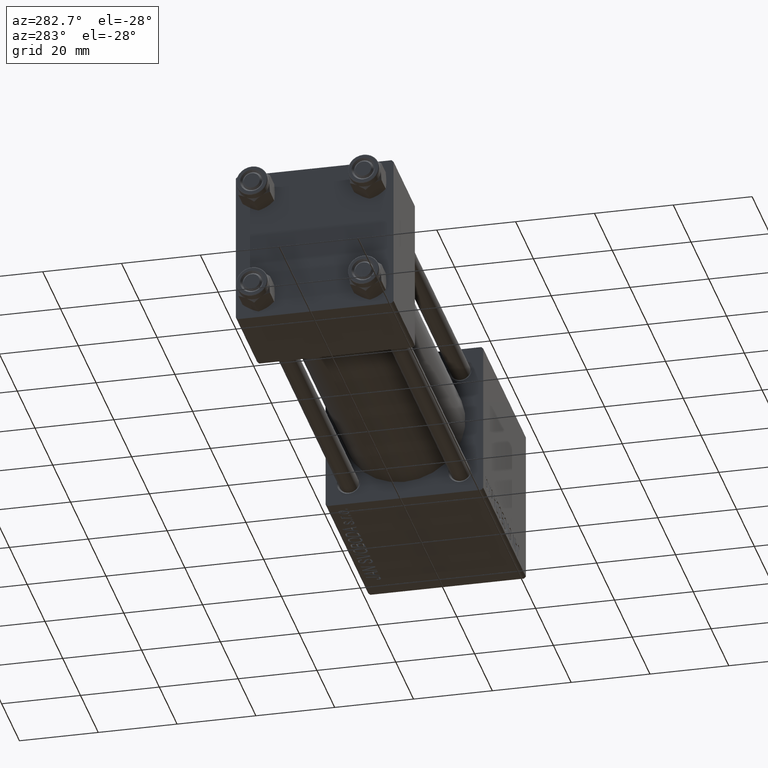
[diagram: clean part render]
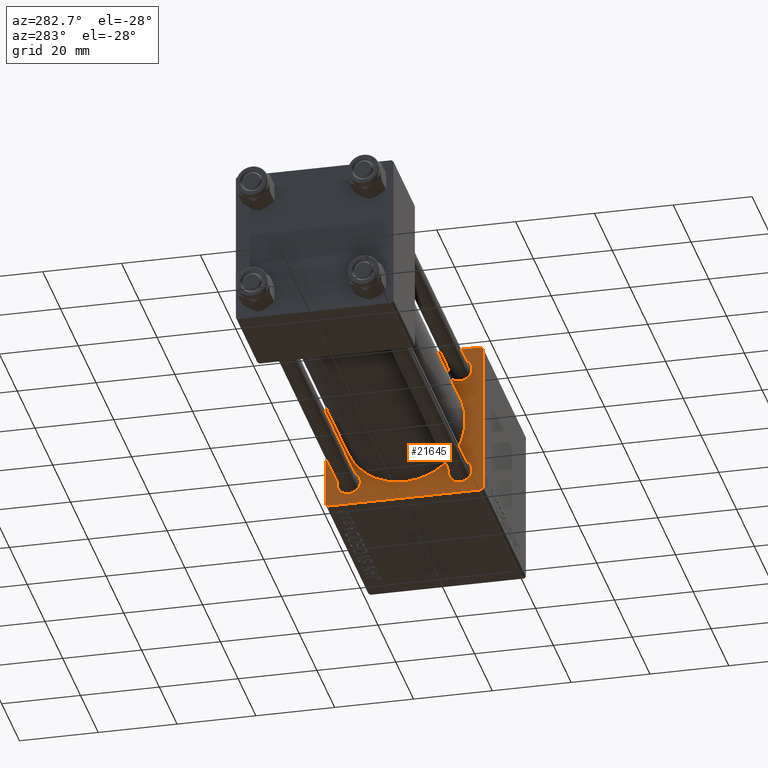
[diagram: same view with one face highlighted and labeled with its STEP entity id]
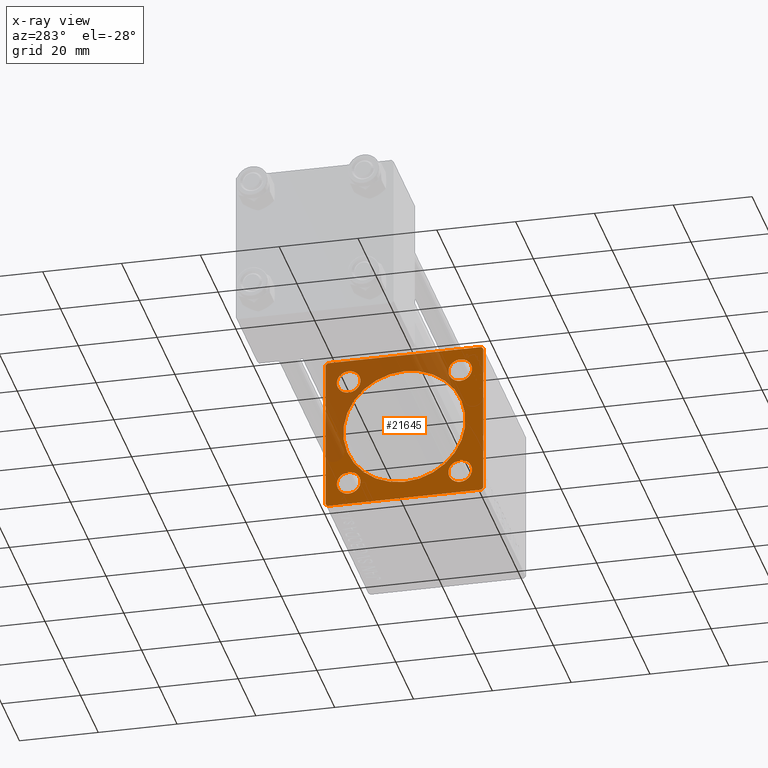
[diagram: x-ray of the same camera — body ghosted, the highlighted face saturated]
A machine part, auxiliary view. The second image highlights one B-rep face of the part: STEP entity #21645.
The next image is the same camera in x-ray: the body ghosted, the highlighted face saturated — about 37% of this face is hidden behind the body in this view.
In plain terms, the highlighted planar face has unit normal (-1, 0, 0).
Its self-contained STEP definition (entity closure, byte-faithful):
#106 = CARTESIAN_POINT ( 'NONE',  ( 101.0000000000000000, -14.15000000000000036, 14.15000000000000036 ) ) ;
#389 = VECTOR ( 'NONE', #10485, 1000.000000000000000 ) ;
#514 = VERTEX_POINT ( 'NONE', #46395 ) ;
#589 = CARTESIAN_POINT ( 'NONE',  ( 101.0000000000000000, -14.15000000000000036, -14.15000000000000036 ) ) ;
#835 = CIRCLE ( 'NONE', #29232, 15.50000000000000000 ) ;
#1167 = EDGE_CURVE ( 'NONE', #42217, #35576, #22633, .T. ) ;
#1291 = VERTEX_POINT ( 'NONE', #35570 ) ;
#1395 = AXIS2_PLACEMENT_3D ( 'NONE', #106, #15108, #7726 ) ;
#1436 = LINE ( 'NONE', #16935, #12302 ) ;
#1615 = FACE_OUTER_BOUND ( 'NONE', #41134, .T. ) ;
#1790 = CARTESIAN_POINT ( 'NONE',  ( 101.0000000000000000, 14.15000000000000036, -11.14999999999999680 ) ) ;
#1904 = ORIENTED_EDGE ( 'NONE', *, *, #34051, .T. ) ;
#3658 = VECTOR ( 'NONE', #22795, 1000.000000000000000 ) ;
#3748 = DIRECTION ( 'NONE',  ( 0.000000000000000000, 0.7071067811865474617, -0.7071067811865474617 ) ) ;
#3995 = DIRECTION ( 'NONE',  ( 1.000000000000000000, 0.000000000000000000, 0.000000000000000000 ) ) ;
#4229 = DIRECTION ( 'NONE',  ( -0.000000000000000000, 0.7071067811865474617, 0.7071067811865474617 ) ) ;
#4678 = CARTESIAN_POINT ( 'NONE',  ( 101.0000000000000000, 0.000000000000000000, 0.000000000000000000 ) ) ;
#5265 = ORIENTED_EDGE ( 'NONE', *, *, #23315, .T. ) ;
#6428 = CARTESIAN_POINT ( 'NONE',  ( 101.0000000000000000, 19.99999999999999645, 19.50000000000004263 ) ) ;
#6494 = CARTESIAN_POINT ( 'NONE',  ( 101.0000000000000000, -19.50000000000002487, -20.00000000000000000 ) ) ;
#6927 = EDGE_CURVE ( 'NONE', #47364, #26702, #16805, .T. ) ;
#7128 = CARTESIAN_POINT ( 'NONE',  ( 101.0000000000000000, -19.50000000000003197, 19.99999999999999645 ) ) ;
#7492 = CARTESIAN_POINT ( 'NONE',  ( 101.0000000000000000, -14.15000000000000036, 11.14999999999999503 ) ) ;
#7538 = EDGE_LOOP ( 'NONE', ( #16961, #28087 ) ) ;
#7726 = DIRECTION ( 'NONE',  ( 0.000000000000000000, 0.000000000000000000, 1.000000000000000000 ) ) ;
#8067 = EDGE_CURVE ( 'NONE', #20169, #33606, #30277, .T. ) ;
#8194 = CARTESIAN_POINT ( 'NONE',  ( 101.0000000000000000, -14.15000000000000036, 14.15000000000000036 ) ) ;
#8668 = CIRCLE ( 'NONE', #1395, 3.000000000000004441 ) ;
#10485 = DIRECTION ( 'NONE',  ( 0.000000000000000000, -1.000000000000000000, 0.000000000000000000 ) ) ;
#10501 = EDGE_CURVE ( 'NONE', #23328, #47364, #27115, .T. ) ;
#10571 = ORIENTED_EDGE ( 'NONE', *, *, #39151, .T. ) ;
#10891 = DIRECTION ( 'NONE',  ( 1.000000000000000000, 0.000000000000000000, 0.000000000000000000 ) ) ;
#11138 = CARTESIAN_POINT ( 'NONE',  ( 101.0000000000000000, -2.602085213965210642E-15, 0.000000000000000000 ) ) ;
#11710 = DIRECTION ( 'NONE',  ( 0.000000000000000000, 0.000000000000000000, -1.000000000000000000 ) ) ;
#12302 = VECTOR ( 'NONE', #40306, 1000.000000000000000 ) ;
#12457 = EDGE_CURVE ( 'NONE', #12758, #35576, #1436, .T. ) ;
#12507 = CIRCLE ( 'NONE', #14941, 3.000000000000004441 ) ;
#12557 = FACE_BOUND ( 'NONE', #13073, .T. ) ;
#12576 = CARTESIAN_POINT ( 'NONE',  ( 101.0000000000000000, -14.15000000000000036, -14.15000000000000036 ) ) ;
#12758 = VERTEX_POINT ( 'NONE', #34077 ) ;
#12834 = AXIS2_PLACEMENT_3D ( 'NONE', #12576, #27812, #23756 ) ;
#12935 = CIRCLE ( 'NONE', #20945, 3.000000000000004441 ) ;
#13073 = EDGE_LOOP ( 'NONE', ( #13723, #40195 ) ) ;
#13368 = CIRCLE ( 'NONE', #45858, 15.50000000000000000 ) ;
#13436 = AXIS2_PLACEMENT_3D ( 'NONE', #27360, #3995, #30680 ) ;
#13723 = ORIENTED_EDGE ( 'NONE', *, *, #33248, .T. ) ;
#14216 = ORIENTED_EDGE ( 'NONE', *, *, #21389, .F. ) ;
#14464 = ORIENTED_EDGE ( 'NONE', *, *, #40710, .T. ) ;
#14918 = DIRECTION ( 'NONE',  ( -0.000000000000000000, -0.7071067811865474617, -0.7071067811865474617 ) ) ;
#14941 = AXIS2_PLACEMENT_3D ( 'NONE', #34041, #41665, #37598 ) ;
#14977 = CARTESIAN_POINT ( 'NONE',  ( 101.0000000000000000, 14.15000000000000036, 17.15000000000000568 ) ) ;
#15108 = DIRECTION ( 'NONE',  ( 1.000000000000000000, 0.000000000000000000, 0.000000000000000000 ) ) ;
#15253 = DIRECTION ( 'NONE',  ( 0.000000000000000000, -0.7071067811865474617, 0.7071067811865474617 ) ) ;
#16758 = ORIENTED_EDGE ( 'NONE', *, *, #12457, .F. ) ;
#16805 = LINE ( 'NONE', #32306, #18894 ) ;
#16935 = CARTESIAN_POINT ( 'NONE',  ( 101.0000000000000000, -20.00000000000000355, 19.99999999999999645 ) ) ;
#16961 = ORIENTED_EDGE ( 'NONE', *, *, #47205, .T. ) ;
#17514 = DIRECTION ( 'NONE',  ( 0.000000000000000000, 0.000000000000000000, 1.000000000000000000 ) ) ;
#17960 = VECTOR ( 'NONE', #15253, 1000.000000000000114 ) ;
#18270 = DIRECTION ( 'NONE',  ( 1.000000000000000000, 0.000000000000000000, 0.000000000000000000 ) ) ;
#18315 = AXIS2_PLACEMENT_3D ( 'NONE', #589, #32085, #28013 ) ;
#18894 = VECTOR ( 'NONE', #47833, 1000.000000000000000 ) ;
#19075 = CIRCLE ( 'NONE', #47493, 3.000000000000004441 ) ;
#19400 = VERTEX_POINT ( 'NONE', #44727 ) ;
#19891 = DIRECTION ( 'NONE',  ( 1.000000000000000000, 0.000000000000000000, 0.000000000000000000 ) ) ;
#20151 = ORIENTED_EDGE ( 'NONE', *, *, #8067, .T. ) ;
#20169 = VERTEX_POINT ( 'NONE', #14977 ) ;
#20668 = FACE_BOUND ( 'NONE', #48458, .T. ) ;
#20945 = AXIS2_PLACEMENT_3D ( 'NONE', #8194, #19891, #44268 ) ;
#21389 = EDGE_CURVE ( 'NONE', #23328, #22102, #34482, .T. ) ;
#21645 = ADVANCED_FACE ( 'NONE', ( #44307, #28538, #20668, #12557, #48131, #1615 ), #47386, .T. ) ;
#22102 = VERTEX_POINT ( 'NONE', #7128 ) ;
#22125 = EDGE_CURVE ( 'NONE', #24749, #41018, #19075, .T. ) ;
#22187 = CARTESIAN_POINT ( 'NONE',  ( 101.0000000000000000, -14.15000000000000036, 17.15000000000000568 ) ) ;
#22331 = CARTESIAN_POINT ( 'NONE',  ( 101.0000000000000000, 14.15000000000000036, 14.15000000000000036 ) ) ;
#22345 = AXIS2_PLACEMENT_3D ( 'NONE', #4678, #31861, #44052 ) ;
#22633 = LINE ( 'NONE', #26924, #17960 ) ;
#22697 = ORIENTED_EDGE ( 'NONE', *, *, #24327, .T. ) ;
#22795 = DIRECTION ( 'NONE',  ( 0.000000000000000000, -1.000000000000000000, -8.673617379884035472E-17 ) ) ;
#23315 = EDGE_CURVE ( 'NONE', #41018, #24749, #12507, .T. ) ;
#23328 = VERTEX_POINT ( 'NONE', #49817 ) ;
#23653 = DIRECTION ( 'NONE',  ( 1.000000000000000000, 0.000000000000000000, 0.000000000000000000 ) ) ;
#23756 = DIRECTION ( 'NONE',  ( 0.000000000000000000, 0.000000000000000000, 1.000000000000000000 ) ) ;
#24015 = EDGE_LOOP ( 'NONE', ( #10571, #14464 ) ) ;
#24327 = EDGE_CURVE ( 'NONE', #26702, #43905, #37800, .T. ) ;
#24390 = CARTESIAN_POINT ( 'NONE',  ( 101.0000000000000000, -2.602085213965210642E-15, 0.000000000000000000 ) ) ;
#24749 = VERTEX_POINT ( 'NONE', #1790 ) ;
#25288 = ORIENTED_EDGE ( 'NONE', *, *, #41616, .T. ) ;
#25871 = CARTESIAN_POINT ( 'NONE',  ( 101.0000000000000000, -14.15000000000000036, -11.14999999999999680 ) ) ;
#26702 = VERTEX_POINT ( 'NONE', #35526 ) ;
#26831 = VECTOR ( 'NONE', #3748, 1000.000000000000114 ) ;
#26924 = CARTESIAN_POINT ( 'NONE',  ( 101.0000000000000000, -19.75000000000001066, -19.75000000000001066 ) ) ;
#27011 = EDGE_CURVE ( 'NONE', #514, #29690, #32090, .T. ) ;
#27115 = LINE ( 'NONE', #49788, #26831 ) ;
#27147 = VECTOR ( 'NONE', #14918, 1000.000000000000114 ) ;
#27166 = DIRECTION ( 'NONE',  ( 0.000000000000000000, 0.000000000000000000, 1.000000000000000000 ) ) ;
#27360 = CARTESIAN_POINT ( 'NONE',  ( 101.0000000000000000, 14.15000000000000036, 14.15000000000000036 ) ) ;
#27812 = DIRECTION ( 'NONE',  ( 1.000000000000000000, 0.000000000000000000, 0.000000000000000000 ) ) ;
#28013 = DIRECTION ( 'NONE',  ( 0.000000000000000000, 0.000000000000000000, 1.000000000000000000 ) ) ;
#28087 = ORIENTED_EDGE ( 'NONE', *, *, #36547, .T. ) ;
#28538 = FACE_BOUND ( 'NONE', #36645, .T. ) ;
#28836 = VERTEX_POINT ( 'NONE', #7492 ) ;
#28840 = CIRCLE ( 'NONE', #13436, 3.000000000000004441 ) ;
#29232 = AXIS2_PLACEMENT_3D ( 'NONE', #11138, #10891, #42147 ) ;
#29267 = VERTEX_POINT ( 'NONE', #22187 ) ;
#29690 = VERTEX_POINT ( 'NONE', #25871 ) ;
#29797 = CARTESIAN_POINT ( 'NONE',  ( 101.0000000000000000, 19.99999999999999645, -20.00000000000000000 ) ) ;
#29912 = ORIENTED_EDGE ( 'NONE', *, *, #1167, .T. ) ;
#30277 = CIRCLE ( 'NONE', #43270, 3.000000000000004441 ) ;
#30680 = DIRECTION ( 'NONE',  ( 0.000000000000000000, 0.000000000000000000, 1.000000000000000000 ) ) ;
#31169 = CARTESIAN_POINT ( 'NONE',  ( 101.0000000000000000, 19.99999999999999645, 20.00000000000000000 ) ) ;
#31861 = DIRECTION ( 'NONE',  ( -1.000000000000000000, 0.000000000000000000, -0.000000000000000000 ) ) ;
#32085 = DIRECTION ( 'NONE',  ( 1.000000000000000000, 0.000000000000000000, 0.000000000000000000 ) ) ;
#32090 = CIRCLE ( 'NONE', #18315, 3.000000000000004441 ) ;
#32306 = CARTESIAN_POINT ( 'NONE',  ( 101.0000000000000000, 19.99999999999999645, 20.00000000000000000 ) ) ;
#33144 = CIRCLE ( 'NONE', #12834, 3.000000000000004441 ) ;
#33248 = EDGE_CURVE ( 'NONE', #29690, #514, #33144, .T. ) ;
#33606 = VERTEX_POINT ( 'NONE', #39651 ) ;
#33881 = ORIENTED_EDGE ( 'NONE', *, *, #10501, .T. ) ;
#34008 = CARTESIAN_POINT ( 'NONE',  ( 101.0000000000000000, -20.00000000000000000, -19.50000000000002487 ) ) ;
#34041 = CARTESIAN_POINT ( 'NONE',  ( 101.0000000000000000, 14.15000000000000036, -14.15000000000000036 ) ) ;
#34051 = EDGE_CURVE ( 'NONE', #12758, #22102, #42608, .T. ) ;
#34077 = CARTESIAN_POINT ( 'NONE',  ( 101.0000000000000000, -20.00000000000000355, 19.50000000000002487 ) ) ;
#34308 = CARTESIAN_POINT ( 'NONE',  ( 101.0000000000000000, 14.15000000000000036, -14.15000000000000036 ) ) ;
#34482 = LINE ( 'NONE', #31169, #3658 ) ;
#35526 = CARTESIAN_POINT ( 'NONE',  ( 101.0000000000000000, 19.99999999999999645, -19.50000000000001421 ) ) ;
#35570 = CARTESIAN_POINT ( 'NONE',  ( 101.0000000000000000, -7.038826752868131828E-16, -15.50000000000000000 ) ) ;
#35576 = VERTEX_POINT ( 'NONE', #34008 ) ;
#36547 = EDGE_CURVE ( 'NONE', #28836, #29267, #12935, .T. ) ;
#36645 = EDGE_LOOP ( 'NONE', ( #20151, #37245 ) ) ;
#37219 = VECTOR ( 'NONE', #4229, 1000.000000000000114 ) ;
#37245 = ORIENTED_EDGE ( 'NONE', *, *, #43632, .T. ) ;
#37586 = ORIENTED_EDGE ( 'NONE', *, *, #22125, .T. ) ;
#37598 = DIRECTION ( 'NONE',  ( 0.000000000000000000, 0.000000000000000000, 1.000000000000000000 ) ) ;
#37674 = LINE ( 'NONE', #29797, #389 ) ;
#37800 = LINE ( 'NONE', #45688, #27147 ) ;
#38049 = CARTESIAN_POINT ( 'NONE',  ( 101.0000000000000000, -19.75000000000001421, 19.75000000000001421 ) ) ;
#38120 = DIRECTION ( 'NONE',  ( 1.000000000000000000, 0.000000000000000000, 0.000000000000000000 ) ) ;
#39151 = EDGE_CURVE ( 'NONE', #19400, #1291, #835, .T. ) ;
#39651 = CARTESIAN_POINT ( 'NONE',  ( 101.0000000000000000, 14.15000000000000036, 11.14999999999999680 ) ) ;
#40084 = CARTESIAN_POINT ( 'NONE',  ( 101.0000000000000000, 14.15000000000000036, -17.15000000000000568 ) ) ;
#40195 = ORIENTED_EDGE ( 'NONE', *, *, #27011, .T. ) ;
#40306 = DIRECTION ( 'NONE',  ( 0.000000000000000000, 8.673617379884036705E-17, -1.000000000000000000 ) ) ;
#40710 = EDGE_CURVE ( 'NONE', #1291, #19400, #13368, .T. ) ;
#41018 = VERTEX_POINT ( 'NONE', #40084 ) ;
#41134 = EDGE_LOOP ( 'NONE', ( #25288, #29912, #16758, #1904, #14216, #33881, #47659, #22697 ) ) ;
#41616 = EDGE_CURVE ( 'NONE', #43905, #42217, #37674, .T. ) ;
#41665 = DIRECTION ( 'NONE',  ( 1.000000000000000000, 0.000000000000000000, 0.000000000000000000 ) ) ;
#42147 = DIRECTION ( 'NONE',  ( 0.000000000000000000, 0.000000000000000000, -1.000000000000000000 ) ) ;
#42217 = VERTEX_POINT ( 'NONE', #6494 ) ;
#42608 = LINE ( 'NONE', #38049, #37219 ) ;
#43270 = AXIS2_PLACEMENT_3D ( 'NONE', #22331, #18270, #17514 ) ;
#43632 = EDGE_CURVE ( 'NONE', #33606, #20169, #28840, .T. ) ;
#43905 = VERTEX_POINT ( 'NONE', #46426 ) ;
#44052 = DIRECTION ( 'NONE',  ( -0.000000000000000000, 0.000000000000000000, 1.000000000000000000 ) ) ;
#44268 = DIRECTION ( 'NONE',  ( 0.000000000000000000, 0.000000000000000000, 1.000000000000000000 ) ) ;
#44307 = FACE_BOUND ( 'NONE', #7538, .T. ) ;
#44727 = CARTESIAN_POINT ( 'NONE',  ( 101.0000000000000000, -2.602085213965210642E-15, 15.50000000000000000 ) ) ;
#45688 = CARTESIAN_POINT ( 'NONE',  ( 101.0000000000000000, 19.75000000000000355, -19.75000000000000355 ) ) ;
#45858 = AXIS2_PLACEMENT_3D ( 'NONE', #24390, #23653, #11710 ) ;
#46395 = CARTESIAN_POINT ( 'NONE',  ( 101.0000000000000000, -14.15000000000000036, -17.15000000000000568 ) ) ;
#46426 = CARTESIAN_POINT ( 'NONE',  ( 101.0000000000000000, 19.50000000000001066, -20.00000000000000000 ) ) ;
#47205 = EDGE_CURVE ( 'NONE', #29267, #28836, #8668, .T. ) ;
#47364 = VERTEX_POINT ( 'NONE', #6428 ) ;
#47386 = PLANE ( 'NONE',  #22345 ) ;
#47493 = AXIS2_PLACEMENT_3D ( 'NONE', #34308, #38120, #27166 ) ;
#47659 = ORIENTED_EDGE ( 'NONE', *, *, #6927, .T. ) ;
#47833 = DIRECTION ( 'NONE',  ( 0.000000000000000000, 0.000000000000000000, -1.000000000000000000 ) ) ;
#48131 = FACE_BOUND ( 'NONE', #24015, .T. ) ;
#48458 = EDGE_LOOP ( 'NONE', ( #37586, #5265 ) ) ;
#49788 = CARTESIAN_POINT ( 'NONE',  ( 101.0000000000000000, 19.75000000000002132, 19.75000000000002132 ) ) ;
#49817 = CARTESIAN_POINT ( 'NONE',  ( 101.0000000000000000, 19.50000000000003908, 20.00000000000000000 ) ) ;